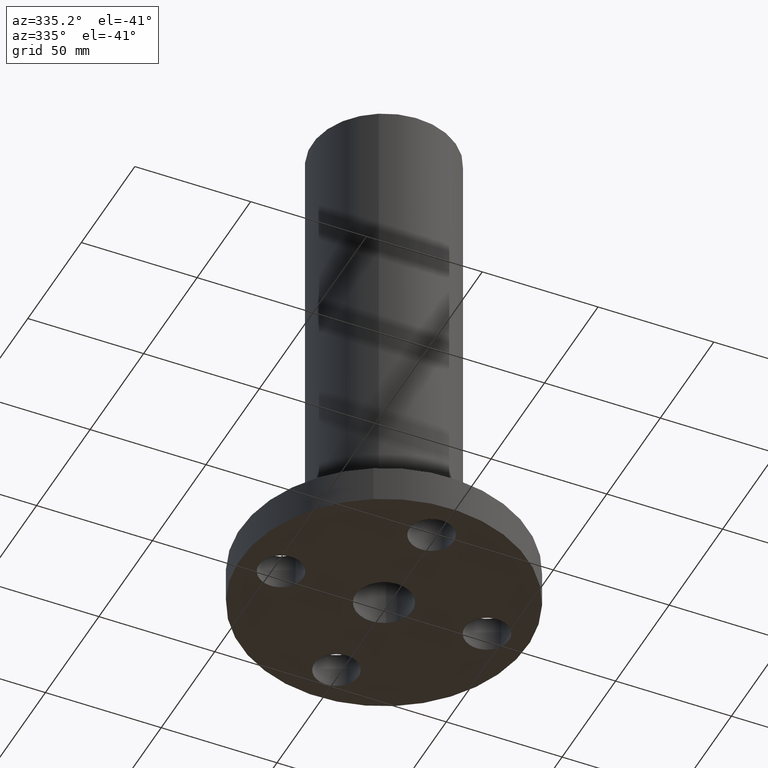
[diagram: clean part render]
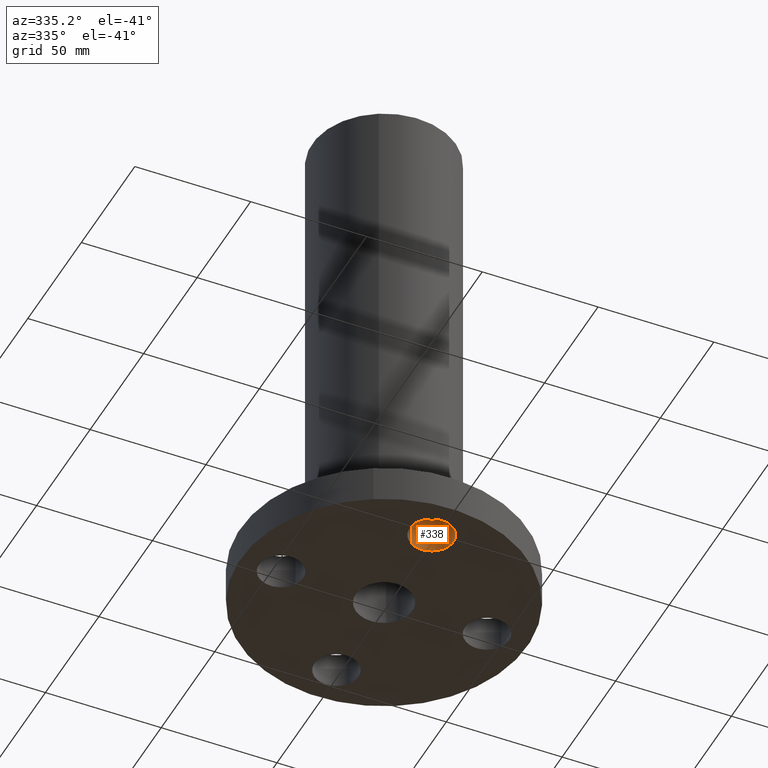
[diagram: same view with one face highlighted and labeled with its STEP entity id]
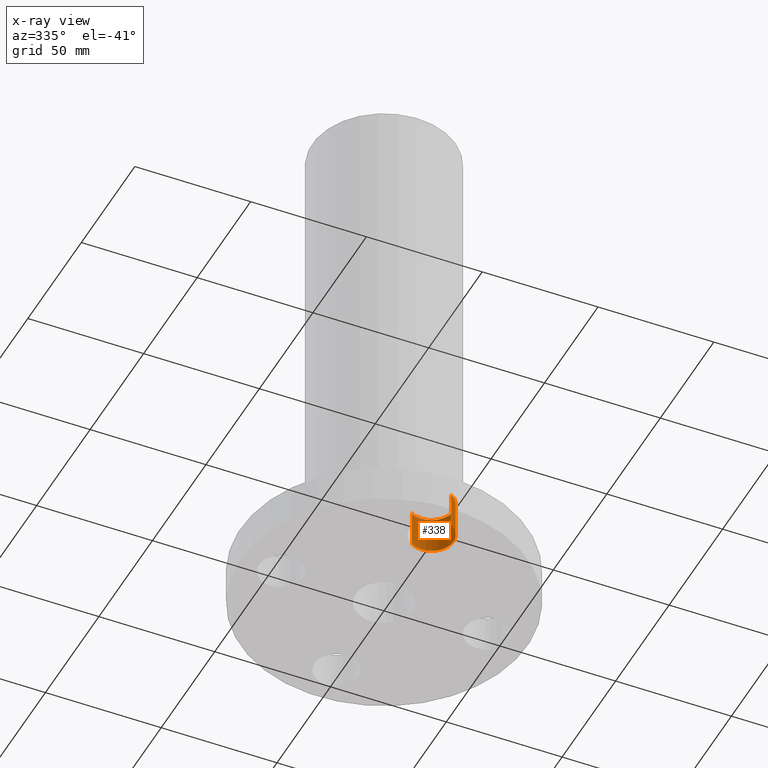
[diagram: x-ray of the same camera — body ghosted, the highlighted face saturated]
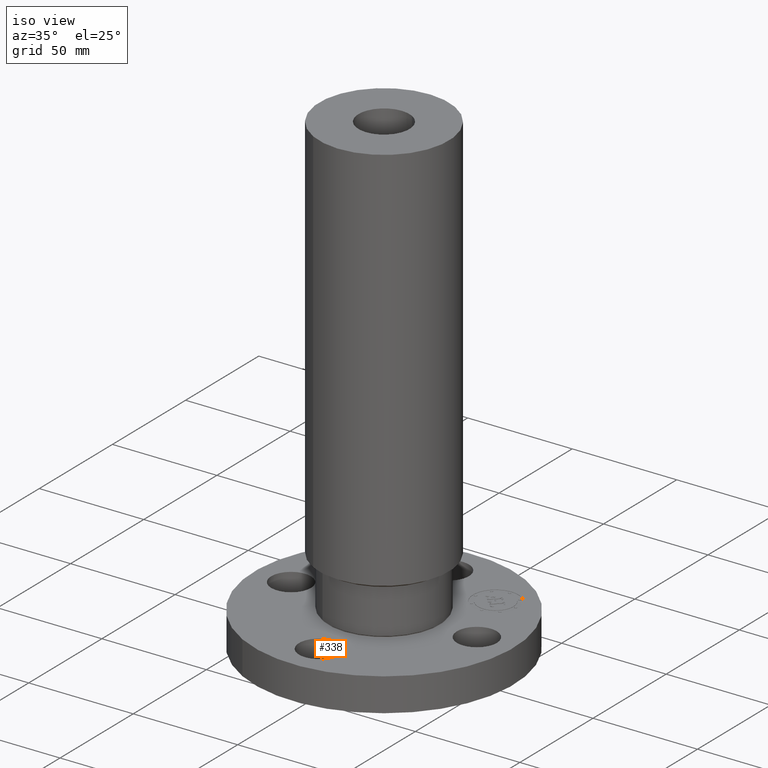
[diagram: same view with one face highlighted and labeled with its STEP entity id]
A machine part, auxiliary view. The second image highlights one B-rep face of the part: STEP entity #338.
The next image is the same camera in x-ray: the body ghosted, the highlighted face saturated — about 0% of this face is hidden behind the body in this view.
A second angle (iso view) of the same face is appended — the face is thin or edge-on in the first view.
In plain terms, the highlighted cylindrical surface (edge-blend (fillet) strip) has radius 9.525 mm, axis along (-0, 0, 1).
Its self-contained STEP definition (entity closure, byte-faithful):
#139=AXIS2_PLACEMENT_3D('Circle Axis2P3D',#137,#138,$) ;
#299=AXIS2_PLACEMENT_3D('Cylinder Axis2P3D',#296,#297,#298) ;
#329=AXIS2_PLACEMENT_3D('Circle Axis2P3D',#327,#328,$) ;
#137=CARTESIAN_POINT('Axis2P3D Location',(2.79741234551E-016,-1.75000000001,0.627500000003)) ;
#141=CARTESIAN_POINT('Vertex',(-0.179784576977,-1.4209065393,0.627500000003)) ;
#143=CARTESIAN_POINT('Vertex',(0.179784576977,-2.07909346072,0.627500000003)) ;
#296=CARTESIAN_POINT('Axis2P3D Location',(1.07156594926E-016,-1.75000000001,0.00393700787402)) ;
#301=CARTESIAN_POINT('Line Origine',(-0.179784576977,-1.4209065393,0.313750000001)) ;
#305=CARTESIAN_POINT('Vertex',(-0.179784576977,-1.4209065393,2.2401153548E-016)) ;
#308=CARTESIAN_POINT('Line Origine',(0.179784576977,-2.07909346072,0.313750000001)) ;
#312=CARTESIAN_POINT('Vertex',(0.179784576977,-2.07909346072,2.2401153548E-016)) ;
#327=CARTESIAN_POINT('Axis2P3D Location',(1.07156594926E-016,-1.75000000001,0.)) ;
#138=DIRECTION('Axis2P3D Direction',(0.,0.,-0.0393700787402)) ;
#297=DIRECTION('Axis2P3D Direction',(-0.,0.,0.0393700787402)) ;
#298=DIRECTION('Axis2P3D XDirection',(0.0188750212049,-0.0345504945626,0.)) ;
#302=DIRECTION('Vector Direction',(0.,0.,0.0393700787402)) ;
#309=DIRECTION('Vector Direction',(0.,0.,0.0393700787402)) ;
#328=DIRECTION('Axis2P3D Direction',(-0.,0.,0.0393700787402)) ;
#303=VECTOR('Line Direction',#302,0.0393700787402) ;
#310=VECTOR('Line Direction',#309,0.0393700787402) ;
#333=ORIENTED_EDGE('',*,*,#314,.F.) ;
#334=ORIENTED_EDGE('',*,*,#145,.F.) ;
#335=ORIENTED_EDGE('',*,*,#307,.T.) ;
#336=ORIENTED_EDGE('',*,*,#331,.T.) ;
#338=ADVANCED_FACE('PartBody',(#337),#300,.F.) ;
#140=CIRCLE('generated circle',#139,0.375000000001) ;
#330=CIRCLE('generated circle',#329,0.375000000001) ;
#300=CYLINDRICAL_SURFACE('generated cylinder',#299,0.375000000001) ;
#145=EDGE_CURVE('',#142,#144,#140,.T.) ;
#307=EDGE_CURVE('',#142,#306,#304,.F.) ;
#314=EDGE_CURVE('',#144,#313,#311,.F.) ;
#331=EDGE_CURVE('',#306,#313,#330,.F.) ;
#332=EDGE_LOOP('',(#333,#334,#335,#336)) ;
#337=FACE_OUTER_BOUND('',#332,.T.) ;
#304=LINE('Line',#301,#303) ;
#311=LINE('Line',#308,#310) ;
#142=VERTEX_POINT('',#141) ;
#144=VERTEX_POINT('',#143) ;
#306=VERTEX_POINT('',#305) ;
#313=VERTEX_POINT('',#312) ;